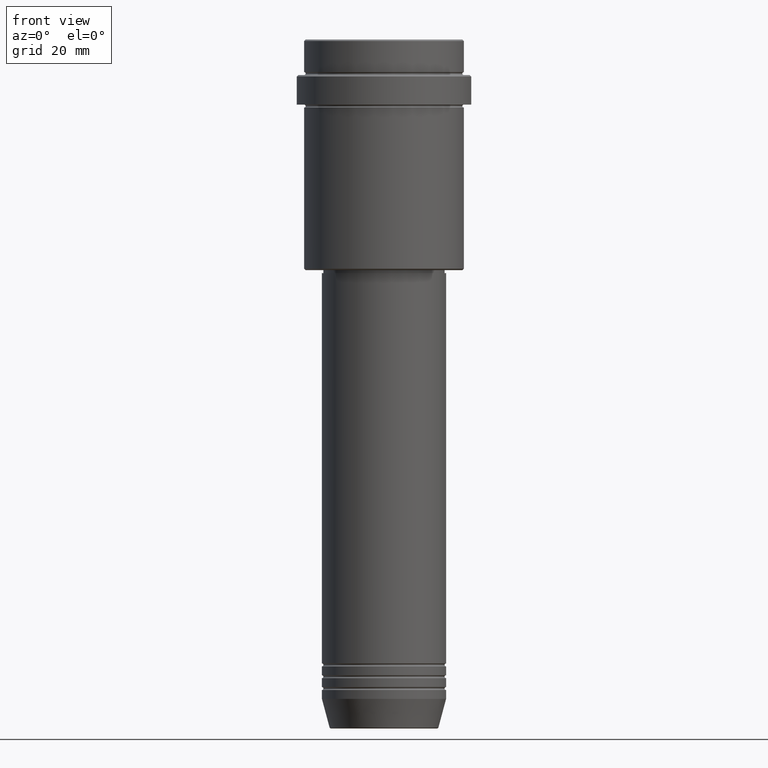
[diagram: clean part render]
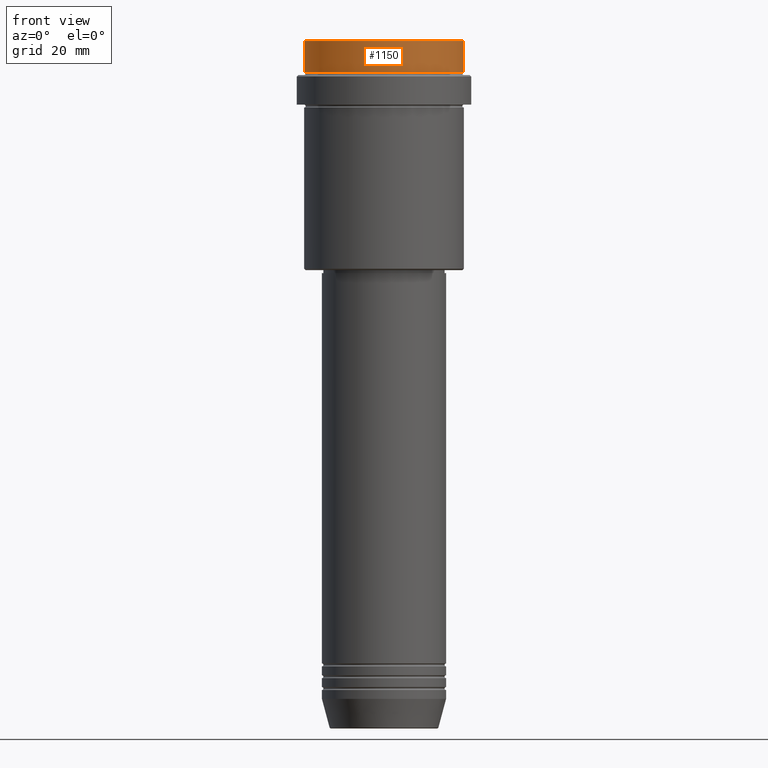
[diagram: same view with one face highlighted and labeled with its STEP entity id]
A machine part, front view. The second image highlights one B-rep face of the part: STEP entity #1150.
In plain terms, the highlighted cylindrical surface (partial cylindrical patch) has radius 27 mm, axis along (-0, -0, 1).
Its self-contained STEP definition (entity closure, byte-faithful):
#77 = DIRECTION ( 'NONE',  ( -0.000000000000000000, -0.000000000000000000, 1.000000000000000000 ) ) ;
#91 = VERTEX_POINT ( 'NONE', #662 ) ;
#109 = CIRCLE ( 'NONE', #471, 27.00000000000000355 ) ;
#124 = VERTEX_POINT ( 'NONE', #675 ) ;
#154 = FACE_OUTER_BOUND ( 'NONE', #593, .T. ) ;
#162 = CYLINDRICAL_SURFACE ( 'NONE', #963, 27.00000000000000355 ) ;
#215 = DIRECTION ( 'NONE',  ( -0.000000000000000000, -0.000000000000000000, 1.000000000000000000 ) ) ;
#274 = ORIENTED_EDGE ( 'NONE', *, *, #1140, .F. ) ;
#319 = VECTOR ( 'NONE', #1121, 1000.000000000000000 ) ;
#330 = CARTESIAN_POINT ( 'NONE',  ( -27.00000000000000355, 3.306546357697854128E-15, -11.00000000000000178 ) ) ;
#367 = EDGE_CURVE ( 'NONE', #1410, #124, #395, .T. ) ;
#369 = LINE ( 'NONE', #1234, #319 ) ;
#395 = CIRCLE ( 'NONE', #587, 27.00000000000000355 ) ;
#419 = VECTOR ( 'NONE', #77, 1000.000000000000000 ) ;
#471 = AXIS2_PLACEMENT_3D ( 'NONE', #1035, #1116, #599 ) ;
#540 = CARTESIAN_POINT ( 'NONE',  ( 0.000000000000000000, 0.000000000000000000, -11.00000000000000178 ) ) ;
#579 = CARTESIAN_POINT ( 'NONE',  ( 0.000000000000000000, 0.000000000000000000, 0.000000000000000000 ) ) ;
#584 = DIRECTION ( 'NONE',  ( 1.000000000000000000, 0.000000000000000000, 0.000000000000000000 ) ) ;
#587 = AXIS2_PLACEMENT_3D ( 'NONE', #540, #215, #856 ) ;
#593 = EDGE_LOOP ( 'NONE', ( #274, #816, #708, #1102 ) ) ;
#599 = DIRECTION ( 'NONE',  ( 1.000000000000000000, 0.000000000000000000, 0.000000000000000000 ) ) ;
#640 = EDGE_CURVE ( 'NONE', #124, #91, #1041, .T. ) ;
#662 = CARTESIAN_POINT ( 'NONE',  ( 27.00000000000000355, 0.000000000000000000, -0.4999999999999796274 ) ) ;
#675 = CARTESIAN_POINT ( 'NONE',  ( 27.00000000000000355, 0.000000000000000000, -11.00000000000000178 ) ) ;
#708 = ORIENTED_EDGE ( 'NONE', *, *, #640, .T. ) ;
#741 = VERTEX_POINT ( 'NONE', #1274 ) ;
#794 = DIRECTION ( 'NONE',  ( -0.000000000000000000, -0.000000000000000000, 1.000000000000000000 ) ) ;
#816 = ORIENTED_EDGE ( 'NONE', *, *, #367, .T. ) ;
#856 = DIRECTION ( 'NONE',  ( 1.000000000000000000, 0.000000000000000000, 0.000000000000000000 ) ) ;
#963 = AXIS2_PLACEMENT_3D ( 'NONE', #579, #794, #584 ) ;
#1035 = CARTESIAN_POINT ( 'NONE',  ( 0.000000000000000000, 0.000000000000000000, -0.4999999999999796274 ) ) ;
#1041 = LINE ( 'NONE', #1349, #419 ) ;
#1068 = EDGE_CURVE ( 'NONE', #91, #741, #109, .T. ) ;
#1102 = ORIENTED_EDGE ( 'NONE', *, *, #1068, .T. ) ;
#1116 = DIRECTION ( 'NONE',  ( 0.000000000000000000, 0.000000000000000000, -1.000000000000000000 ) ) ;
#1121 = DIRECTION ( 'NONE',  ( -0.000000000000000000, -0.000000000000000000, 1.000000000000000000 ) ) ;
#1140 = EDGE_CURVE ( 'NONE', #1410, #741, #369, .T. ) ;
#1150 = ADVANCED_FACE ( 'NONE', ( #154 ), #162, .T. ) ;
#1234 = CARTESIAN_POINT ( 'NONE',  ( -27.00000000000000355, 3.306546357697854128E-15, 0.000000000000000000 ) ) ;
#1274 = CARTESIAN_POINT ( 'NONE',  ( -27.00000000000000355, 3.306546357697854128E-15, -0.4999999999999796274 ) ) ;
#1349 = CARTESIAN_POINT ( 'NONE',  ( 27.00000000000000355, 0.000000000000000000, 0.000000000000000000 ) ) ;
#1410 = VERTEX_POINT ( 'NONE', #330 ) ;